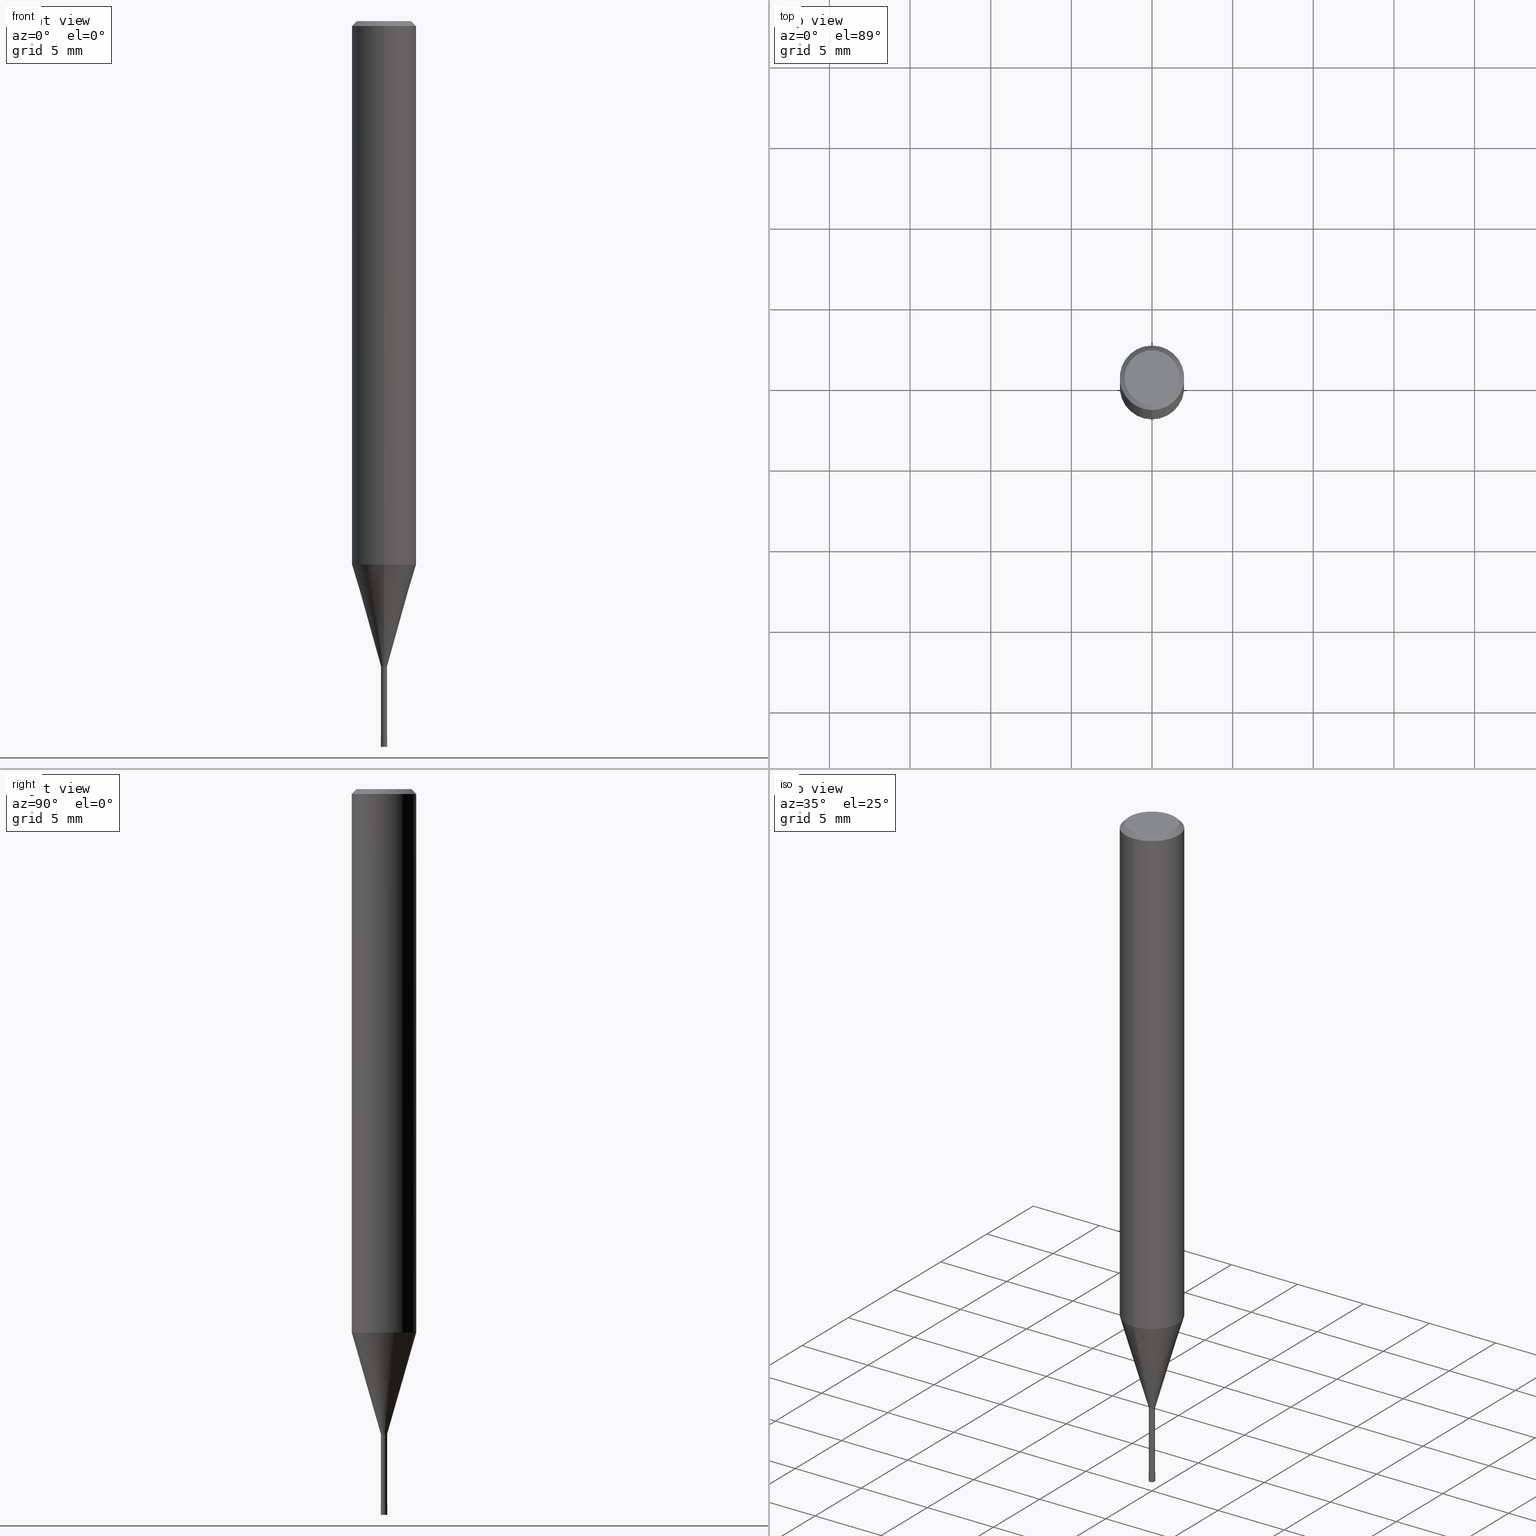
[diagram: canonical four-view strip — front | top / right | iso, engineering-drawing reading convention]
A machine part, canonical four-view strip (front | top / right | iso — engineering-drawing reading convention). The complete STEP part file that produces these views, byte-faithful:
ISO-10303-21;
HEADER;
FILE_DESCRIPTION(('no description'),'unknown implementation level');
FILE_NAME('HLS2004-050-Huellk.stp','  ',('CIMSOURCE GmbH'),('CADClick - KiM GmbH - www.kimweb.de'),'unknown preprocess','ACIS','unknown authorization');
FILE_SCHEMA(('automotive_design'));
ENDSEC;
DATA;
#1=MECHANICAL_DESIGN_GEOMETRIC_PRESENTATION_REPRESENTATION(' ',(#14,#15,#16,#17,#18,#19,#20,#21,#22,#23,#24,#25,#26,#27,#28,#29,#30,#31,#32,#33,#34,#35,#36,#37,#38,#39,#40,#41,#42,#43,#44,#45,#46,#47,#48,#49,#50,#51,#52,#53,#54,#55,#56,#57,#58,#59,#60,#61,#62,#63,#64,#65,#66,#67,#68,#69,#70,#71,#72),#10);
#2=PRODUCT_DEFINITION_CONTEXT('',#73,'design');
#3=APPLICATION_PROTOCOL_DEFINITION('INTERNATIONAL STANDARD','automotive_design',1994,#73);
#4=PRODUCT_CATEGORY_RELATIONSHIP('NONE','NONE',#74,#75);
#5=SHAPE_DEFINITION_REPRESENTATION(#76,#77);
#6=PRODUCT_DEFINITION_CONTEXT('',#78,'design');
#7=APPLICATION_PROTOCOL_DEFINITION('INTERNATIONAL STANDARD','automotive_design',1994,#78);
#8=PRODUCT_CATEGORY_RELATIONSHIP('NONE','NONE',#79,#80);
#9=SHAPE_DEFINITION_REPRESENTATION(#81,#82);
#10= (GEOMETRIC_REPRESENTATION_CONTEXT(3)GLOBAL_UNCERTAINTY_ASSIGNED_CONTEXT((#85))GLOBAL_UNIT_ASSIGNED_CONTEXT((#87,#88,#89))REPRESENTATION_CONTEXT('NONE','WORKSPACE'));
#14=STYLED_ITEM('',(#91),#92);
#15=STYLED_ITEM('',(#93),#94);
#16=STYLED_ITEM('',(#95),#96);
#17=STYLED_ITEM('',(#97),#98);
#18=STYLED_ITEM('',(#99),#100);
#19=STYLED_ITEM('',(#101),#102);
#20=STYLED_ITEM('',(#103),#104);
#21=STYLED_ITEM('',(#105),#106);
#22=STYLED_ITEM('',(#107),#108);
#23=STYLED_ITEM('',(#109),#110);
#24=STYLED_ITEM('',(#111),#112);
#25=STYLED_ITEM('',(#113),#114);
#26=STYLED_ITEM('',(#115),#116);
#27=STYLED_ITEM('',(#117),#118);
#28=STYLED_ITEM('',(#119),#120);
#29=STYLED_ITEM('',(#121),#122);
#30=STYLED_ITEM('',(#123),#124);
#31=STYLED_ITEM('',(#125),#126);
#32=STYLED_ITEM('',(#127),#128);
#33=STYLED_ITEM('',(#129),#130);
#34=STYLED_ITEM('',(#131),#132);
#35=STYLED_ITEM('',(#133),#134);
#36=STYLED_ITEM('',(#135),#136);
#37=STYLED_ITEM('',(#137),#138);
#38=STYLED_ITEM('',(#139),#140);
#39=STYLED_ITEM('',(#141),#142);
#40=STYLED_ITEM('',(#143),#144);
#41=STYLED_ITEM('',(#145),#146);
#42=STYLED_ITEM('',(#147),#148);
#43=STYLED_ITEM('',(#149),#150);
#44=STYLED_ITEM('',(#151),#152);
#45=STYLED_ITEM('',(#153),#154);
#46=STYLED_ITEM('',(#155),#156);
#47=STYLED_ITEM('',(#157),#158);
#48=STYLED_ITEM('',(#159),#160);
#49=STYLED_ITEM('',(#161),#162);
#50=STYLED_ITEM('',(#163),#164);
#51=STYLED_ITEM('',(#165),#166);
#52=STYLED_ITEM('',(#167),#168);
#53=STYLED_ITEM('',(#169),#170);
#54=STYLED_ITEM('',(#171),#172);
#55=STYLED_ITEM('',(#173),#174);
#56=STYLED_ITEM('',(#175),#176);
#57=STYLED_ITEM('',(#177),#178);
#58=STYLED_ITEM('',(#179),#180);
#59=STYLED_ITEM('',(#181),#182);
#60=STYLED_ITEM('',(#183),#184);
#61=STYLED_ITEM('',(#185),#186);
#62=STYLED_ITEM('',(#187),#188);
#63=STYLED_ITEM('',(#189),#190);
#64=STYLED_ITEM('',(#191),#192);
#65=STYLED_ITEM('',(#193),#194);
#66=STYLED_ITEM('',(#195),#196);
#67=STYLED_ITEM('',(#197),#198);
#68=STYLED_ITEM('',(#199),#200);
#69=STYLED_ITEM('',(#201),#202);
#70=STYLED_ITEM('',(#203),#204);
#71=STYLED_ITEM('',(#205),#206);
#72=STYLED_ITEM('',(#207),#208);
#73=APPLICATION_CONTEXT(' ');
#74=PRODUCT_CATEGORY('part','NONE');
#75=PRODUCT_RELATED_PRODUCT_CATEGORY('detail',' ',(#209));
#76=PRODUCT_DEFINITION_SHAPE('NONE','NONE',#210);
#77=ADVANCED_BREP_SHAPE_REPRESENTATION('1',(#154,#211),#10);
#78=APPLICATION_CONTEXT(' ');
#79=PRODUCT_CATEGORY('part','NONE');
#80=PRODUCT_RELATED_PRODUCT_CATEGORY('detail',' ',(#212));
#81=PRODUCT_DEFINITION_SHAPE('NONE','NONE',#213);
#82=ADVANCED_BREP_SHAPE_REPRESENTATION('2',(#134,#214),#10);
#85=UNCERTAINTY_MEASURE_WITH_UNIT(LENGTH_MEASURE(1.0E-006),#87,'','');
#87= (CONVERSION_BASED_UNIT('MILLIMETRE',#217)LENGTH_UNIT()NAMED_UNIT(#220));
#88= (NAMED_UNIT(#222)PLANE_ANGLE_UNIT()SI_UNIT($,.RADIAN.));
#89= (NAMED_UNIT(#222)SOLID_ANGLE_UNIT()SI_UNIT($,.STERADIAN.));
#91=PRESENTATION_STYLE_ASSIGNMENT((#228));
#92=EDGE_CURVE('',#172,#206,#229,.T.);
#93=PRESENTATION_STYLE_ASSIGNMENT((#230));
#94=VERTEX_POINT('',#231);
#95=PRESENTATION_STYLE_ASSIGNMENT((#232));
#96=ADVANCED_FACE('',(#233),#234,.T.);
#97=PRESENTATION_STYLE_ASSIGNMENT((#235));
#98=EDGE_CURVE('',#150,#124,#236,.T.);
#99=PRESENTATION_STYLE_ASSIGNMENT((#237));
#100=EDGE_CURVE('',#132,#106,#238,.T.);
#101=PRESENTATION_STYLE_ASSIGNMENT((#239));
#102=EDGE_CURVE('',#186,#122,#240,.T.);
#103=PRESENTATION_STYLE_ASSIGNMENT((#241));
#104=EDGE_CURVE('',#150,#94,#242,.T.);
#105=PRESENTATION_STYLE_ASSIGNMENT((#243));
#106=VERTEX_POINT('',#244);
#107=PRESENTATION_STYLE_ASSIGNMENT((#245));
#108=EDGE_CURVE('',#144,#166,#246,.T.);
#109=PRESENTATION_STYLE_ASSIGNMENT((#247));
#110=EDGE_CURVE('',#124,#160,#248,.T.);
#111=PRESENTATION_STYLE_ASSIGNMENT((#249));
#112=ADVANCED_FACE('',(#250),#251,.T.);
#113=PRESENTATION_STYLE_ASSIGNMENT((#252));
#114=ADVANCED_FACE('',(#253),#254,.T.);
#115=PRESENTATION_STYLE_ASSIGNMENT((#255));
#116=VERTEX_POINT('',#256);
#117=PRESENTATION_STYLE_ASSIGNMENT((#257));
#118=EDGE_CURVE('',#122,#116,#258,.T.);
#119=PRESENTATION_STYLE_ASSIGNMENT((#259));
#120=EDGE_CURVE('',#124,#150,#260,.T.);
#121=PRESENTATION_STYLE_ASSIGNMENT((#261));
#122=VERTEX_POINT('',#262);
#123=PRESENTATION_STYLE_ASSIGNMENT((#263));
#124=VERTEX_POINT('',#264);
#125=PRESENTATION_STYLE_ASSIGNMENT((#265));
#126=EDGE_CURVE('',#116,#196,#266,.T.);
#127=PRESENTATION_STYLE_ASSIGNMENT((#267));
#128=ADVANCED_FACE('',(#268),#269,.T.);
#129=PRESENTATION_STYLE_ASSIGNMENT((#270));
#130=EDGE_CURVE('',#192,#124,#271,.T.);
#131=PRESENTATION_STYLE_ASSIGNMENT((#272));
#132=VERTEX_POINT('',#273);
#133=PRESENTATION_STYLE_ASSIGNMENT((#274));
#134=MANIFOLD_SOLID_BREP('2',#275);
#135=PRESENTATION_STYLE_ASSIGNMENT((#276));
#136=EDGE_CURVE('',#190,#150,#277,.T.);
#137=PRESENTATION_STYLE_ASSIGNMENT((#278));
#138=EDGE_CURVE('',#192,#94,#279,.T.);
#139=PRESENTATION_STYLE_ASSIGNMENT((#280));
#140=EDGE_CURVE('',#206,#172,#281,.T.);
#141=PRESENTATION_STYLE_ASSIGNMENT((#282));
#142=EDGE_CURVE('',#190,#160,#283,.T.);
#143=PRESENTATION_STYLE_ASSIGNMENT((#284));
#144=VERTEX_POINT('',#285);
#145=PRESENTATION_STYLE_ASSIGNMENT((#286));
#146=ADVANCED_FACE('',(#287),#288,.T.);
#147=PRESENTATION_STYLE_ASSIGNMENT((#289));
#148=EDGE_CURVE('',#106,#186,#290,.T.);
#149=PRESENTATION_STYLE_ASSIGNMENT((#291));
#150=VERTEX_POINT('',#292);
#151=PRESENTATION_STYLE_ASSIGNMENT((#293));
#152=EDGE_CURVE('',#106,#116,#294,.T.);
#153=PRESENTATION_STYLE_ASSIGNMENT((#295));
#154=MANIFOLD_SOLID_BREP('1',#296);
#155=PRESENTATION_STYLE_ASSIGNMENT((#297));
#156=EDGE_CURVE('',#166,#144,#298,.T.);
#157=PRESENTATION_STYLE_ASSIGNMENT((#299));
#158=EDGE_CURVE('',#116,#106,#300,.T.);
#159=PRESENTATION_STYLE_ASSIGNMENT((#301));
#160=VERTEX_POINT('',#302);
#161=PRESENTATION_STYLE_ASSIGNMENT((#303));
#162=EDGE_CURVE('',#144,#172,#304,.T.);
#163=PRESENTATION_STYLE_ASSIGNMENT((#305));
#164=ADVANCED_FACE('',(#306),#307,.T.);
#165=PRESENTATION_STYLE_ASSIGNMENT((#308));
#166=VERTEX_POINT('',#309);
#167=PRESENTATION_STYLE_ASSIGNMENT((#310));
#168=ADVANCED_FACE('',(#311),#312,.T.);
#169=PRESENTATION_STYLE_ASSIGNMENT((#313));
#170=ADVANCED_FACE('',(#314),#315,.T.);
#171=PRESENTATION_STYLE_ASSIGNMENT((#316));
#172=VERTEX_POINT('',#317);
#173=PRESENTATION_STYLE_ASSIGNMENT((#318));
#174=EDGE_CURVE('',#206,#166,#319,.T.);
#175=PRESENTATION_STYLE_ASSIGNMENT((#320));
#176=ADVANCED_FACE('',(#321),#322,.T.);
#177=PRESENTATION_STYLE_ASSIGNMENT((#323));
#178=EDGE_CURVE('',#132,#196,#324,.T.);
#179=PRESENTATION_STYLE_ASSIGNMENT((#325));
#180=ADVANCED_FACE('',(#326,#327),#328,.T.);
#181=PRESENTATION_STYLE_ASSIGNMENT((#329));
#182=ADVANCED_FACE('',(#330),#331,.T.);
#183=PRESENTATION_STYLE_ASSIGNMENT((#332));
#184=ADVANCED_FACE('',(#333),#334,.T.);
#185=PRESENTATION_STYLE_ASSIGNMENT((#335));
#186=VERTEX_POINT('',#336);
#187=PRESENTATION_STYLE_ASSIGNMENT((#337));
#188=ADVANCED_FACE('',(#338),#339,.T.);
#189=PRESENTATION_STYLE_ASSIGNMENT((#340));
#190=VERTEX_POINT('',#341);
#191=PRESENTATION_STYLE_ASSIGNMENT((#342));
#192=VERTEX_POINT('',#343);
#193=PRESENTATION_STYLE_ASSIGNMENT((#344));
#194=EDGE_CURVE('',#122,#186,#345,.T.);
#195=PRESENTATION_STYLE_ASSIGNMENT((#346));
#196=VERTEX_POINT('',#347);
#197=PRESENTATION_STYLE_ASSIGNMENT((#348));
#198=EDGE_CURVE('',#196,#132,#349,.T.);
#199=PRESENTATION_STYLE_ASSIGNMENT((#350));
#200=EDGE_CURVE('',#94,#192,#351,.T.);
#201=PRESENTATION_STYLE_ASSIGNMENT((#352));
#202=EDGE_CURVE('',#160,#190,#353,.T.);
#203=PRESENTATION_STYLE_ASSIGNMENT((#354));
#204=ADVANCED_FACE('',(#355),#356,.T.);
#205=PRESENTATION_STYLE_ASSIGNMENT((#357));
#206=VERTEX_POINT('',#358);
#207=PRESENTATION_STYLE_ASSIGNMENT((#359));
#208=ADVANCED_FACE('',(#360),#361,.T.);
#209=PRODUCT('1','1','PART-1-DESC',(#362));
#210=PRODUCT_DEFINITION('NONE','NONE',#363,#2);
#211=AXIS2_PLACEMENT_3D('',#364,#365,#366);
#212=PRODUCT('2','2','PART-2-DESC',(#367));
#213=PRODUCT_DEFINITION('NONE','NONE',#368,#6);
#214=AXIS2_PLACEMENT_3D('',#369,#370,#371);
#217=LENGTH_MEASURE_WITH_UNIT(LENGTH_MEASURE(1.0),#372);
#220=DIMENSIONAL_EXPONENTS(1.0,0.0,0.0,0.0,0.0,0.0,0.0);
#222=DIMENSIONAL_EXPONENTS(0.0,0.0,0.0,0.0,0.0,0.0,0.0);
#228=CURVE_STYLE('',#373,POSITIVE_LENGTH_MEASURE(1.0E-006),#374);
#229=CIRCLE('',#375,0.1999);
#230=POINT_STYLE(' ',#376,POSITIVE_LENGTH_MEASURE(1.0E-006),#377);
#231=CARTESIAN_POINT('',(0.0,0.18995,-44.4));
#232=SURFACE_STYLE_USAGE(.BOTH.,#378);
#233=FACE_OUTER_BOUND('',#379,.T.);
#234=CYLINDRICAL_SURFACE('',#380,2.0);
#235=CURVE_STYLE('',#381,POSITIVE_LENGTH_MEASURE(1.0E-006),#382);
#236=CIRCLE('',#383,0.18995);
#237=CURVE_STYLE('',#384,POSITIVE_LENGTH_MEASURE(1.0E-006),#385);
#238=LINE('',#386,#387);
#239=CURVE_STYLE('',#388,POSITIVE_LENGTH_MEASURE(1.0E-006),#389);
#240=CIRCLE('',#390,1.7);
#241=CURVE_STYLE('',#391,POSITIVE_LENGTH_MEASURE(1.0E-006),#392);
#242=LINE('',#393,#394);
#243=POINT_STYLE(' ',#395,POSITIVE_LENGTH_MEASURE(1.0E-006),#396);
#244=CARTESIAN_POINT('',(2.44921270764475E-016,-2.0,-0.299999999999997));
#245=CURVE_STYLE('',#397,POSITIVE_LENGTH_MEASURE(1.0E-006),#398);
#246=CIRCLE('',#399,0.2);
#247=CURVE_STYLE('',#400,POSITIVE_LENGTH_MEASURE(1.0E-006),#401);
#248=LINE('',#402,#403);
#249=SURFACE_STYLE_USAGE(.BOTH.,#404);
#250=FACE_OUTER_BOUND('',#405,.T.);
#251=PLANE('',#406);
#252=SURFACE_STYLE_USAGE(.BOTH.,#407);
#253=FACE_OUTER_BOUND('',#408,.T.);
#254=CONICAL_SURFACE('',#409,0.19995,0.000166666665123485);
#255=POINT_STYLE(' ',#410,POSITIVE_LENGTH_MEASURE(1.0E-006),#411);
#256=CARTESIAN_POINT('',(0.0,2.0,-0.299999999999997));
#257=CURVE_STYLE('',#412,POSITIVE_LENGTH_MEASURE(1.0E-006),#413);
#258=LINE('',#414,#415);
#259=CURVE_STYLE('',#416,POSITIVE_LENGTH_MEASURE(1.0E-006),#417);
#260=CIRCLE('',#418,0.18995);
#261=POINT_STYLE(' ',#419,POSITIVE_LENGTH_MEASURE(1.0E-006),#420);
#262=CARTESIAN_POINT('',(0.0,1.7,0.0));
#263=POINT_STYLE(' ',#421,POSITIVE_LENGTH_MEASURE(1.0E-006),#422);
#264=CARTESIAN_POINT('',(2.3261397690856E-017,-0.18995,-40.0));
#265=CURVE_STYLE('',#423,POSITIVE_LENGTH_MEASURE(1.0E-006),#424);
#266=LINE('',#425,#426);
#267=SURFACE_STYLE_USAGE(.BOTH.,#427);
#268=FACE_OUTER_BOUND('',#428,.T.);
#269=CONICAL_SURFACE('',#429,0.19995,0.000166666665123485);
#270=CURVE_STYLE('',#430,POSITIVE_LENGTH_MEASURE(1.0E-006),#431);
#271=LINE('',#432,#433);
#272=POINT_STYLE(' ',#434,POSITIVE_LENGTH_MEASURE(1.0E-006),#435);
#273=CARTESIAN_POINT('',(2.44921270764475E-016,-2.0,-33.688));
#274=SURFACE_STYLE_USAGE(.BOTH.,#436);
#275=CLOSED_SHELL('',(#114,#170,#128,#112));
#276=CURVE_STYLE('',#437,POSITIVE_LENGTH_MEASURE(1.0E-006),#438);
#277=LINE('',#439,#440);
#278=CURVE_STYLE('',#441,POSITIVE_LENGTH_MEASURE(1.0E-006),#442);
#279=CIRCLE('',#443,0.18995);
#280=CURVE_STYLE('',#444,POSITIVE_LENGTH_MEASURE(1.0E-006),#445);
#281=CIRCLE('',#446,0.1999);
#282=CURVE_STYLE('',#447,POSITIVE_LENGTH_MEASURE(1.0E-006),#448);
#283=CIRCLE('',#449,1.99995);
#284=POINT_STYLE(' ',#450,POSITIVE_LENGTH_MEASURE(1.0E-006),#451);
#285=CARTESIAN_POINT('',(2.44921270764476E-017,-0.2,-45.0));
#286=SURFACE_STYLE_USAGE(.BOTH.,#452);
#287=FACE_OUTER_BOUND('',#453,.T.);
#288=CYLINDRICAL_SURFACE('',#454,0.18995);
#289=CURVE_STYLE('',#455,POSITIVE_LENGTH_MEASURE(1.0E-006),#456);
#290=LINE('',#457,#458);
#291=POINT_STYLE(' ',#459,POSITIVE_LENGTH_MEASURE(1.0E-006),#460);
#292=CARTESIAN_POINT('',(0.0,0.18995,-40.0));
#293=CURVE_STYLE('',#461,POSITIVE_LENGTH_MEASURE(1.0E-006),#462);
#294=CIRCLE('',#463,2.0);
#295=SURFACE_STYLE_USAGE(.BOTH.,#464);
#296=CLOSED_SHELL('',(#146,#176,#96,#164,#180,#204,#188,#184,#168,#182,#208));
#297=CURVE_STYLE('',#465,POSITIVE_LENGTH_MEASURE(1.0E-006),#466);
#298=CIRCLE('',#467,0.2);
#299=CURVE_STYLE('',#468,POSITIVE_LENGTH_MEASURE(1.0E-006),#469);
#300=CIRCLE('',#470,2.0);
#301=POINT_STYLE(' ',#471,POSITIVE_LENGTH_MEASURE(1.0E-006),#472);
#302=CARTESIAN_POINT('',(2.44915147732706E-016,-1.99995,-33.688));
#303=CURVE_STYLE('',#473,POSITIVE_LENGTH_MEASURE(1.0E-006),#474);
#304=LINE('',#475,#476);
#305=SURFACE_STYLE_USAGE(.BOTH.,#477);
#306=FACE_OUTER_BOUND('',#478,.T.);
#307=CONICAL_SURFACE('',#479,1.85,0.785398163397453);
#308=POINT_STYLE(' ',#480,POSITIVE_LENGTH_MEASURE(1.0E-006),#481);
#309=CARTESIAN_POINT('',(0.0,0.2,-45.0));
#310=SURFACE_STYLE_USAGE(.BOTH.,#482);
#311=FACE_OUTER_BOUND('',#483,.T.);
#312=CONICAL_SURFACE('',#484,1.09495,0.279261921280279);
#313=SURFACE_STYLE_USAGE(.BOTH.,#485);
#314=FACE_OUTER_BOUND('',#486,.T.);
#315=PLANE('',#487);
#316=POINT_STYLE(' ',#488,POSITIVE_LENGTH_MEASURE(1.0E-006),#489);
#317=CARTESIAN_POINT('',(2.44798810129093E-017,-0.1999,-44.4));
#318=CURVE_STYLE('',#490,POSITIVE_LENGTH_MEASURE(1.0E-006),#491);
#319=LINE('',#492,#493);
#320=SURFACE_STYLE_USAGE(.BOTH.,#494);
#321=FACE_OUTER_BOUND('',#495,.T.);
#322=CONICAL_SURFACE('',#496,1.09495,0.279261921280279);
#323=CURVE_STYLE('',#497,POSITIVE_LENGTH_MEASURE(1.0E-006),#498);
#324=CIRCLE('',#499,2.0);
#325=SURFACE_STYLE_USAGE(.BOTH.,#500);
#326=FACE_OUTER_BOUND('',#501,.T.);
#327=FACE_BOUND('',#502,.T.);
#328=PLANE('',#503);
#329=SURFACE_STYLE_USAGE(.BOTH.,#504);
#330=FACE_OUTER_BOUND('',#505,.T.);
#331=CYLINDRICAL_SURFACE('',#506,0.18995);
#332=SURFACE_STYLE_USAGE(.BOTH.,#507);
#333=FACE_OUTER_BOUND('',#508,.T.);
#334=CYLINDRICAL_SURFACE('',#509,2.0);
#335=POINT_STYLE(' ',#510,POSITIVE_LENGTH_MEASURE(1.0E-006),#511);
#336=CARTESIAN_POINT('',(2.08183080149804E-016,-1.7,0.0));
#337=SURFACE_STYLE_USAGE(.BOTH.,#512);
#338=FACE_OUTER_BOUND('',#513,.T.);
#339=CONICAL_SURFACE('',#514,1.85,0.785398163397453);
#340=POINT_STYLE(' ',#515,POSITIVE_LENGTH_MEASURE(1.0E-006),#516);
#341=CARTESIAN_POINT('',(0.0,1.99995,-33.688));
#342=POINT_STYLE(' ',#517,POSITIVE_LENGTH_MEASURE(1.0E-006),#518);
#343=CARTESIAN_POINT('',(2.32613976908561E-017,-0.18995,-44.4));
#344=CURVE_STYLE('',#519,POSITIVE_LENGTH_MEASURE(1.0E-006),#520);
#345=CIRCLE('',#521,1.7);
#346=POINT_STYLE(' ',#522,POSITIVE_LENGTH_MEASURE(1.0E-006),#523);
#347=CARTESIAN_POINT('',(0.0,2.0,-33.688));
#348=CURVE_STYLE('',#524,POSITIVE_LENGTH_MEASURE(1.0E-006),#525);
#349=CIRCLE('',#526,2.0);
#350=CURVE_STYLE('',#527,POSITIVE_LENGTH_MEASURE(1.0E-006),#528);
#351=CIRCLE('',#529,0.18995);
#352=CURVE_STYLE('',#530,POSITIVE_LENGTH_MEASURE(1.0E-006),#531);
#353=CIRCLE('',#532,1.99995);
#354=SURFACE_STYLE_USAGE(.BOTH.,#533);
#355=FACE_OUTER_BOUND('',#534,.T.);
#356=PLANE('',#535);
#357=POINT_STYLE(' ',#536,POSITIVE_LENGTH_MEASURE(1.0E-006),#537);
#358=CARTESIAN_POINT('',(0.0,0.1999,-44.4));
#359=SURFACE_STYLE_USAGE(.BOTH.,#538);
#360=FACE_OUTER_BOUND('',#539,.T.);
#361=PLANE('',#540);
#362=PRODUCT_CONTEXT('',#73,'mechanical');
#363=PRODUCT_DEFINITION_FORMATION_WITH_SPECIFIED_SOURCE(' ','NONE',#209,.NOT_KNOWN.);
#364=CARTESIAN_POINT('',(0.0,0.0,0.0));
#365=DIRECTION('',(0.0,0.0,1.0));
#366=DIRECTION('',(1.0,0.0,0.0));
#367=PRODUCT_CONTEXT('',#78,'mechanical');
#368=PRODUCT_DEFINITION_FORMATION_WITH_SPECIFIED_SOURCE(' ','NONE',#212,.NOT_KNOWN.);
#369=CARTESIAN_POINT('',(0.0,0.0,0.0));
#370=DIRECTION('',(0.0,0.0,1.0));
#371=DIRECTION('',(1.0,0.0,0.0));
#372= (NAMED_UNIT(#220)LENGTH_UNIT()SI_UNIT(.MILLI.,.METRE.));
#373=DRAUGHTING_PRE_DEFINED_CURVE_FONT('continuous');
#374=COLOUR_RGB('',0.800000011920929,0.800000011920929,0.800000011920929);
#375=AXIS2_PLACEMENT_3D('',#542,#543,#544);
#376=PRE_DEFINED_MARKER('');
#377=COLOUR_RGB('',0.498039215803146,0.498039215803146,0.498039215803146);
#378=SURFACE_SIDE_STYLE('',(#545));
#379=EDGE_LOOP('',(#546,#547,#548,#549));
#380=AXIS2_PLACEMENT_3D('',#550,#551,#552);
#381=DRAUGHTING_PRE_DEFINED_CURVE_FONT('continuous');
#382=COLOUR_RGB('',0.498039215803146,0.498039215803146,0.498039215803146);
#383=AXIS2_PLACEMENT_3D('',#553,#554,#555);
#384=DRAUGHTING_PRE_DEFINED_CURVE_FONT('continuous');
#385=COLOUR_RGB('',0.498039215803146,0.498039215803146,0.498039215803146);
#386=CARTESIAN_POINT('',(2.44921270764475E-016,-2.0,-16.994));
#387=VECTOR('',#556,1.0);
#388=DRAUGHTING_PRE_DEFINED_CURVE_FONT('continuous');
#389=COLOUR_RGB('',0.498039215803146,0.498039215803146,0.498039215803146);
#390=AXIS2_PLACEMENT_3D('',#557,#558,#559);
#391=DRAUGHTING_PRE_DEFINED_CURVE_FONT('continuous');
#392=COLOUR_RGB('',0.498039215803146,0.498039215803146,0.498039215803146);
#393=CARTESIAN_POINT('',(-2.32613976908561E-017,0.18995,-42.2));
#394=VECTOR('',#560,1.0);
#395=PRE_DEFINED_MARKER('');
#396=COLOUR_RGB('',0.498039215803146,0.498039215803146,0.498039215803146);
#397=DRAUGHTING_PRE_DEFINED_CURVE_FONT('continuous');
#398=COLOUR_RGB('',0.800000011920929,0.800000011920929,0.800000011920929);
#399=AXIS2_PLACEMENT_3D('',#561,#562,#563);
#400=DRAUGHTING_PRE_DEFINED_CURVE_FONT('continuous');
#401=COLOUR_RGB('',0.498039215803146,0.498039215803146,0.498039215803146);
#402=CARTESIAN_POINT('',(1.34088272711781E-016,-1.09495,-36.844));
#403=VECTOR('',#564,1.0);
#404=SURFACE_SIDE_STYLE('',(#565));
#405=EDGE_LOOP('',(#566,#567));
#406=AXIS2_PLACEMENT_3D('',#568,#569,#570);
#407=SURFACE_SIDE_STYLE('',(#571));
#408=EDGE_LOOP('',(#572,#573,#574,#575));
#409=AXIS2_PLACEMENT_3D('',#576,#577,#578);
#410=PRE_DEFINED_MARKER('');
#411=COLOUR_RGB('',0.498039215803146,0.498039215803146,0.498039215803146);
#412=DRAUGHTING_PRE_DEFINED_CURVE_FONT('continuous');
#413=COLOUR_RGB('',0.498039215803146,0.498039215803146,0.498039215803146);
#414=CARTESIAN_POINT('',(-2.2655217545714E-016,1.85,-0.149999999999999));
#415=VECTOR('',#579,1.0);
#416=DRAUGHTING_PRE_DEFINED_CURVE_FONT('continuous');
#417=COLOUR_RGB('',0.498039215803146,0.498039215803146,0.498039215803146);
#418=AXIS2_PLACEMENT_3D('',#580,#581,#582);
#419=PRE_DEFINED_MARKER('');
#420=COLOUR_RGB('',0.498039215803146,0.498039215803146,0.498039215803146);
#421=PRE_DEFINED_MARKER('');
#422=COLOUR_RGB('',0.498039215803146,0.498039215803146,0.498039215803146);
#423=DRAUGHTING_PRE_DEFINED_CURVE_FONT('continuous');
#424=COLOUR_RGB('',0.498039215803146,0.498039215803146,0.498039215803146);
#425=CARTESIAN_POINT('',(-2.44921270764475E-016,2.0,-16.994));
#426=VECTOR('',#583,1.0);
#427=SURFACE_SIDE_STYLE('',(#584));
#428=EDGE_LOOP('',(#585,#586,#587,#588));
#429=AXIS2_PLACEMENT_3D('',#589,#590,#591);
#430=DRAUGHTING_PRE_DEFINED_CURVE_FONT('continuous');
#431=COLOUR_RGB('',0.498039215803146,0.498039215803146,0.498039215803146);
#432=CARTESIAN_POINT('',(2.32613976908561E-017,-0.18995,-42.2));
#433=VECTOR('',#592,1.0);
#434=PRE_DEFINED_MARKER('');
#435=COLOUR_RGB('',0.498039215803146,0.498039215803146,0.498039215803146);
#436=SURFACE_SIDE_STYLE('',(#593));
#437=DRAUGHTING_PRE_DEFINED_CURVE_FONT('continuous');
#438=COLOUR_RGB('',0.498039215803146,0.498039215803146,0.498039215803146);
#439=CARTESIAN_POINT('',(-1.34088272711781E-016,1.09495,-36.844));
#440=VECTOR('',#594,1.0);
#441=DRAUGHTING_PRE_DEFINED_CURVE_FONT('continuous');
#442=COLOUR_RGB('',0.498039215803146,0.498039215803146,0.498039215803146);
#443=AXIS2_PLACEMENT_3D('',#595,#596,#597);
#444=DRAUGHTING_PRE_DEFINED_CURVE_FONT('continuous');
#445=COLOUR_RGB('',0.800000011920929,0.800000011920929,0.800000011920929);
#446=AXIS2_PLACEMENT_3D('',#598,#599,#600);
#447=DRAUGHTING_PRE_DEFINED_CURVE_FONT('continuous');
#448=COLOUR_RGB('',0.498039215803146,0.498039215803146,0.498039215803146);
#449=AXIS2_PLACEMENT_3D('',#601,#602,#603);
#450=PRE_DEFINED_MARKER('');
#451=COLOUR_RGB('',0.800000011920929,0.800000011920929,0.800000011920929);
#452=SURFACE_SIDE_STYLE('',(#604));
#453=EDGE_LOOP('',(#605,#606,#607,#608));
#454=AXIS2_PLACEMENT_3D('',#609,#610,#611);
#455=DRAUGHTING_PRE_DEFINED_CURVE_FONT('continuous');
#456=COLOUR_RGB('',0.498039215803146,0.498039215803146,0.498039215803146);
#457=CARTESIAN_POINT('',(2.2655217545714E-016,-1.85,-0.149999999999999));
#458=VECTOR('',#612,1.0);
#459=PRE_DEFINED_MARKER('');
#460=COLOUR_RGB('',0.498039215803146,0.498039215803146,0.498039215803146);
#461=DRAUGHTING_PRE_DEFINED_CURVE_FONT('continuous');
#462=COLOUR_RGB('',0.498039215803146,0.498039215803146,0.498039215803146);
#463=AXIS2_PLACEMENT_3D('',#613,#614,#615);
#464=SURFACE_SIDE_STYLE('',(#616));
#465=DRAUGHTING_PRE_DEFINED_CURVE_FONT('continuous');
#466=COLOUR_RGB('',0.800000011920929,0.800000011920929,0.800000011920929);
#467=AXIS2_PLACEMENT_3D('',#617,#618,#619);
#468=DRAUGHTING_PRE_DEFINED_CURVE_FONT('continuous');
#469=COLOUR_RGB('',0.498039215803146,0.498039215803146,0.498039215803146);
#470=AXIS2_PLACEMENT_3D('',#620,#621,#622);
#471=PRE_DEFINED_MARKER('');
#472=COLOUR_RGB('',0.498039215803146,0.498039215803146,0.498039215803146);
#473=DRAUGHTING_PRE_DEFINED_CURVE_FONT('continuous');
#474=COLOUR_RGB('',0.800000011920929,0.800000011920929,0.800000011920929);
#475=CARTESIAN_POINT('',(2.44860040446784E-017,-0.19995,-44.7));
#476=VECTOR('',#623,1.0);
#477=SURFACE_SIDE_STYLE('',(#624));
#478=EDGE_LOOP('',(#625,#626,#627,#628));
#479=AXIS2_PLACEMENT_3D('',#629,#630,#631);
#480=PRE_DEFINED_MARKER('');
#481=COLOUR_RGB('',0.800000011920929,0.800000011920929,0.800000011920929);
#482=SURFACE_SIDE_STYLE('',(#632));
#483=EDGE_LOOP('',(#633,#634,#635,#636));
#484=AXIS2_PLACEMENT_3D('',#637,#638,#639);
#485=SURFACE_SIDE_STYLE('',(#640));
#486=EDGE_LOOP('',(#641,#642));
#487=AXIS2_PLACEMENT_3D('',#643,#644,#645);
#488=PRE_DEFINED_MARKER('');
#489=COLOUR_RGB('',0.800000011920929,0.800000011920929,0.800000011920929);
#490=DRAUGHTING_PRE_DEFINED_CURVE_FONT('continuous');
#491=COLOUR_RGB('',0.800000011920929,0.800000011920929,0.800000011920929);
#492=CARTESIAN_POINT('',(-2.44860040446784E-017,0.19995,-44.7));
#493=VECTOR('',#646,1.0);
#494=SURFACE_SIDE_STYLE('',(#647));
#495=EDGE_LOOP('',(#648,#649,#650,#651));
#496=AXIS2_PLACEMENT_3D('',#652,#653,#654);
#497=DRAUGHTING_PRE_DEFINED_CURVE_FONT('continuous');
#498=COLOUR_RGB('',0.498039215803146,0.498039215803146,0.498039215803146);
#499=AXIS2_PLACEMENT_3D('',#655,#656,#657);
#500=SURFACE_SIDE_STYLE('',(#658));
#501=EDGE_LOOP('',(#659,#660));
#502=EDGE_LOOP('',(#661,#662));
#503=AXIS2_PLACEMENT_3D('',#663,#664,#665);
#504=SURFACE_SIDE_STYLE('',(#666));
#505=EDGE_LOOP('',(#667,#668,#669,#670));
#506=AXIS2_PLACEMENT_3D('',#671,#672,#673);
#507=SURFACE_SIDE_STYLE('',(#674));
#508=EDGE_LOOP('',(#675,#676,#677,#678));
#509=AXIS2_PLACEMENT_3D('',#679,#680,#681);
#510=PRE_DEFINED_MARKER('');
#511=COLOUR_RGB('',0.498039215803146,0.498039215803146,0.498039215803146);
#512=SURFACE_SIDE_STYLE('',(#682));
#513=EDGE_LOOP('',(#683,#684,#685,#686));
#514=AXIS2_PLACEMENT_3D('',#687,#688,#689);
#515=PRE_DEFINED_MARKER('');
#516=COLOUR_RGB('',0.498039215803146,0.498039215803146,0.498039215803146);
#517=PRE_DEFINED_MARKER('');
#518=COLOUR_RGB('',0.498039215803146,0.498039215803146,0.498039215803146);
#519=DRAUGHTING_PRE_DEFINED_CURVE_FONT('continuous');
#520=COLOUR_RGB('',0.498039215803146,0.498039215803146,0.498039215803146);
#521=AXIS2_PLACEMENT_3D('',#690,#691,#692);
#522=PRE_DEFINED_MARKER('');
#523=COLOUR_RGB('',0.498039215803146,0.498039215803146,0.498039215803146);
#524=DRAUGHTING_PRE_DEFINED_CURVE_FONT('continuous');
#525=COLOUR_RGB('',0.498039215803146,0.498039215803146,0.498039215803146);
#526=AXIS2_PLACEMENT_3D('',#693,#694,#695);
#527=DRAUGHTING_PRE_DEFINED_CURVE_FONT('continuous');
#528=COLOUR_RGB('',0.498039215803146,0.498039215803146,0.498039215803146);
#529=AXIS2_PLACEMENT_3D('',#696,#697,#698);
#530=DRAUGHTING_PRE_DEFINED_CURVE_FONT('continuous');
#531=COLOUR_RGB('',0.498039215803146,0.498039215803146,0.498039215803146);
#532=AXIS2_PLACEMENT_3D('',#699,#700,#701);
#533=SURFACE_SIDE_STYLE('',(#702));
#534=EDGE_LOOP('',(#703,#704));
#535=AXIS2_PLACEMENT_3D('',#705,#706,#707);
#536=PRE_DEFINED_MARKER('');
#537=COLOUR_RGB('',0.800000011920929,0.800000011920929,0.800000011920929);
#538=SURFACE_SIDE_STYLE('',(#708));
#539=EDGE_LOOP('',(#709,#710));
#540=AXIS2_PLACEMENT_3D('',#711,#712,#713);
#542=CARTESIAN_POINT('',(0.0,0.0,-44.4));
#543=DIRECTION('',(0.0,0.0,-1.0));
#544=DIRECTION('',(0.0,1.0,0.0));
#545=SURFACE_STYLE_FILL_AREA(#714);
#546=ORIENTED_EDGE('',*,*,#126,.F.);
#547=ORIENTED_EDGE('',*,*,#158,.T.);
#548=ORIENTED_EDGE('',*,*,#100,.F.);
#549=ORIENTED_EDGE('',*,*,#198,.F.);
#550=CARTESIAN_POINT('',(0.0,0.0,-16.994));
#551=DIRECTION('',(-0.0,-0.0,1.0));
#552=DIRECTION('',(0.0,1.0,0.0));
#553=CARTESIAN_POINT('',(0.0,0.0,-40.0));
#554=DIRECTION('',(0.0,0.0,-1.0));
#555=DIRECTION('',(0.0,1.0,0.0));
#556=DIRECTION('',(-0.0,-0.0,1.0));
#557=CARTESIAN_POINT('',(0.0,0.0,0.0));
#558=DIRECTION('',(0.0,0.0,-1.0));
#559=DIRECTION('',(0.0,1.0,0.0));
#560=DIRECTION('',(0.0,0.0,-1.0));
#561=CARTESIAN_POINT('',(0.0,0.0,-45.0));
#562=DIRECTION('',(0.0,0.0,-1.0));
#563=DIRECTION('',(0.0,1.0,0.0));
#564=DIRECTION('',(3.37558135426109E-017,-0.275646238787252,0.961259148743169));
#565=SURFACE_STYLE_FILL_AREA(#715);
#566=ORIENTED_EDGE('',*,*,#156,.T.);
#567=ORIENTED_EDGE('',*,*,#108,.T.);
#568=CARTESIAN_POINT('',(0.0,0.0975,-45.0));
#569=DIRECTION('',(0.0,0.0,-1.0));
#570=DIRECTION('',(0.0,1.0,0.0));
#571=SURFACE_STYLE_FILL_AREA(#716);
#572=ORIENTED_EDGE('',*,*,#174,.F.);
#573=ORIENTED_EDGE('',*,*,#140,.T.);
#574=ORIENTED_EDGE('',*,*,#162,.F.);
#575=ORIENTED_EDGE('',*,*,#156,.F.);
#576=CARTESIAN_POINT('',(0.0,0.0,-44.7));
#577=DIRECTION('',(0.0,-0.0,-1.0));
#578=DIRECTION('',(0.0,1.0,0.0));
#579=DIRECTION('',(-8.6592745707194E-017,0.707106781186551,-0.707106781186544));
#580=CARTESIAN_POINT('',(0.0,0.0,-40.0));
#581=DIRECTION('',(0.0,0.0,-1.0));
#582=DIRECTION('',(0.0,1.0,0.0));
#583=DIRECTION('',(0.0,0.0,-1.0));
#584=SURFACE_STYLE_FILL_AREA(#717);
#585=ORIENTED_EDGE('',*,*,#174,.T.);
#586=ORIENTED_EDGE('',*,*,#108,.F.);
#587=ORIENTED_EDGE('',*,*,#162,.T.);
#588=ORIENTED_EDGE('',*,*,#92,.T.);
#589=CARTESIAN_POINT('',(0.0,0.0,-44.7));
#590=DIRECTION('',(0.0,-0.0,-1.0));
#591=DIRECTION('',(0.0,1.0,0.0));
#592=DIRECTION('',(-0.0,-0.0,1.0));
#593=SURFACE_STYLE_FILL_AREA(#718);
#594=DIRECTION('',(3.37558135426109E-017,-0.275646238787252,-0.961259148743169));
#595=CARTESIAN_POINT('',(0.0,0.0,-44.4));
#596=DIRECTION('',(0.0,0.0,-1.0));
#597=DIRECTION('',(0.0,1.0,0.0));
#598=CARTESIAN_POINT('',(0.0,0.0,-44.4));
#599=DIRECTION('',(0.0,0.0,-1.0));
#600=DIRECTION('',(0.0,1.0,0.0));
#601=CARTESIAN_POINT('',(0.0,0.0,-33.688));
#602=DIRECTION('',(0.0,0.0,-1.0));
#603=DIRECTION('',(0.0,1.0,0.0));
#604=SURFACE_STYLE_FILL_AREA(#719);
#605=ORIENTED_EDGE('',*,*,#104,.F.);
#606=ORIENTED_EDGE('',*,*,#98,.T.);
#607=ORIENTED_EDGE('',*,*,#130,.F.);
#608=ORIENTED_EDGE('',*,*,#200,.F.);
#609=CARTESIAN_POINT('',(0.0,0.0,-42.2));
#610=DIRECTION('',(-0.0,-0.0,1.0));
#611=DIRECTION('',(0.0,1.0,0.0));
#612=DIRECTION('',(-8.6592745707194E-017,0.707106781186551,0.707106781186544));
#613=CARTESIAN_POINT('',(0.0,0.0,-0.299999999999997));
#614=DIRECTION('',(0.0,0.0,-1.0));
#615=DIRECTION('',(0.0,1.0,0.0));
#616=SURFACE_STYLE_FILL_AREA(#720);
#617=CARTESIAN_POINT('',(0.0,0.0,-45.0));
#618=DIRECTION('',(0.0,0.0,-1.0));
#619=DIRECTION('',(0.0,1.0,0.0));
#620=CARTESIAN_POINT('',(0.0,0.0,-0.299999999999997));
#621=DIRECTION('',(0.0,0.0,-1.0));
#622=DIRECTION('',(0.0,1.0,0.0));
#623=DIRECTION('',(-2.04101056135694E-020,0.00016666666435188,0.999999986111112));
#624=SURFACE_STYLE_FILL_AREA(#721);
#625=ORIENTED_EDGE('',*,*,#118,.F.);
#626=ORIENTED_EDGE('',*,*,#194,.T.);
#627=ORIENTED_EDGE('',*,*,#148,.F.);
#628=ORIENTED_EDGE('',*,*,#158,.F.);
#629=CARTESIAN_POINT('',(0.0,0.0,-0.149999999999999));
#630=DIRECTION('',(0.0,-0.0,-1.0));
#631=DIRECTION('',(0.0,1.0,0.0));
#632=SURFACE_STYLE_FILL_AREA(#722);
#633=ORIENTED_EDGE('',*,*,#136,.T.);
#634=ORIENTED_EDGE('',*,*,#120,.F.);
#635=ORIENTED_EDGE('',*,*,#110,.T.);
#636=ORIENTED_EDGE('',*,*,#202,.T.);
#637=CARTESIAN_POINT('',(0.0,0.0,-36.844));
#638=DIRECTION('',(-0.0,-0.0,1.0));
#639=DIRECTION('',(0.0,1.0,0.0));
#640=SURFACE_STYLE_FILL_AREA(#723);
#641=ORIENTED_EDGE('',*,*,#140,.F.);
#642=ORIENTED_EDGE('',*,*,#92,.F.);
#643=CARTESIAN_POINT('',(0.0,0.09995,-44.4));
#644=DIRECTION('',(-0.0,0.0,1.0));
#645=DIRECTION('',(0.0,-1.0,0.0));
#646=DIRECTION('',(-2.04101056135694E-020,0.00016666666435188,-0.999999986111112));
#647=SURFACE_STYLE_FILL_AREA(#724);
#648=ORIENTED_EDGE('',*,*,#136,.F.);
#649=ORIENTED_EDGE('',*,*,#142,.T.);
#650=ORIENTED_EDGE('',*,*,#110,.F.);
#651=ORIENTED_EDGE('',*,*,#98,.F.);
#652=CARTESIAN_POINT('',(0.0,0.0,-36.844));
#653=DIRECTION('',(-0.0,-0.0,1.0));
#654=DIRECTION('',(0.0,1.0,0.0));
#655=CARTESIAN_POINT('',(0.0,0.0,-33.688));
#656=DIRECTION('',(0.0,0.0,-1.0));
#657=DIRECTION('',(0.0,1.0,0.0));
#658=SURFACE_STYLE_FILL_AREA(#725);
#659=ORIENTED_EDGE('',*,*,#198,.T.);
#660=ORIENTED_EDGE('',*,*,#178,.T.);
#661=ORIENTED_EDGE('',*,*,#142,.F.);
#662=ORIENTED_EDGE('',*,*,#202,.F.);
#663=CARTESIAN_POINT('',(0.0,1.0,-33.688));
#664=DIRECTION('',(0.0,0.0,-1.0));
#665=DIRECTION('',(0.0,1.0,0.0));
#666=SURFACE_STYLE_FILL_AREA(#726);
#667=ORIENTED_EDGE('',*,*,#104,.T.);
#668=ORIENTED_EDGE('',*,*,#138,.F.);
#669=ORIENTED_EDGE('',*,*,#130,.T.);
#670=ORIENTED_EDGE('',*,*,#120,.T.);
#671=CARTESIAN_POINT('',(0.0,0.0,-42.2));
#672=DIRECTION('',(-0.0,-0.0,1.0));
#673=DIRECTION('',(0.0,1.0,0.0));
#674=SURFACE_STYLE_FILL_AREA(#727);
#675=ORIENTED_EDGE('',*,*,#126,.T.);
#676=ORIENTED_EDGE('',*,*,#178,.F.);
#677=ORIENTED_EDGE('',*,*,#100,.T.);
#678=ORIENTED_EDGE('',*,*,#152,.T.);
#679=CARTESIAN_POINT('',(0.0,0.0,-16.994));
#680=DIRECTION('',(-0.0,-0.0,1.0));
#681=DIRECTION('',(0.0,1.0,0.0));
#682=SURFACE_STYLE_FILL_AREA(#728);
#683=ORIENTED_EDGE('',*,*,#118,.T.);
#684=ORIENTED_EDGE('',*,*,#152,.F.);
#685=ORIENTED_EDGE('',*,*,#148,.T.);
#686=ORIENTED_EDGE('',*,*,#102,.T.);
#687=CARTESIAN_POINT('',(0.0,0.0,-0.149999999999999));
#688=DIRECTION('',(0.0,-0.0,-1.0));
#689=DIRECTION('',(0.0,1.0,0.0));
#690=CARTESIAN_POINT('',(0.0,0.0,0.0));
#691=DIRECTION('',(0.0,0.0,-1.0));
#692=DIRECTION('',(0.0,1.0,0.0));
#693=CARTESIAN_POINT('',(0.0,0.0,-33.688));
#694=DIRECTION('',(0.0,0.0,-1.0));
#695=DIRECTION('',(0.0,1.0,0.0));
#696=CARTESIAN_POINT('',(0.0,0.0,-44.4));
#697=DIRECTION('',(0.0,0.0,-1.0));
#698=DIRECTION('',(0.0,1.0,0.0));
#699=CARTESIAN_POINT('',(0.0,0.0,-33.688));
#700=DIRECTION('',(0.0,0.0,-1.0));
#701=DIRECTION('',(0.0,1.0,0.0));
#702=SURFACE_STYLE_FILL_AREA(#729);
#703=ORIENTED_EDGE('',*,*,#194,.F.);
#704=ORIENTED_EDGE('',*,*,#102,.F.);
#705=CARTESIAN_POINT('',(0.0,0.85,0.0));
#706=DIRECTION('',(-0.0,0.0,1.0));
#707=DIRECTION('',(0.0,-1.0,0.0));
#708=SURFACE_STYLE_FILL_AREA(#730);
#709=ORIENTED_EDGE('',*,*,#200,.T.);
#710=ORIENTED_EDGE('',*,*,#138,.T.);
#711=CARTESIAN_POINT('',(0.0,0.094975,-44.4));
#712=DIRECTION('',(0.0,0.0,-1.0));
#713=DIRECTION('',(0.0,1.0,0.0));
#714=FILL_AREA_STYLE('',(#731));
#715=FILL_AREA_STYLE('',(#732));
#716=FILL_AREA_STYLE('',(#733));
#717=FILL_AREA_STYLE('',(#734));
#718=FILL_AREA_STYLE('',(#735));
#719=FILL_AREA_STYLE('',(#736));
#720=FILL_AREA_STYLE('',(#737));
#721=FILL_AREA_STYLE('',(#738));
#722=FILL_AREA_STYLE('',(#739));
#723=FILL_AREA_STYLE('',(#740));
#724=FILL_AREA_STYLE('',(#741));
#725=FILL_AREA_STYLE('',(#742));
#726=FILL_AREA_STYLE('',(#743));
#727=FILL_AREA_STYLE('',(#744));
#728=FILL_AREA_STYLE('',(#745));
#729=FILL_AREA_STYLE('',(#746));
#730=FILL_AREA_STYLE('',(#747));
#731=FILL_AREA_STYLE_COLOUR('',#748);
#732=FILL_AREA_STYLE_COLOUR('',#749);
#733=FILL_AREA_STYLE_COLOUR('',#750);
#734=FILL_AREA_STYLE_COLOUR('',#751);
#735=FILL_AREA_STYLE_COLOUR('',#752);
#736=FILL_AREA_STYLE_COLOUR('',#753);
#737=FILL_AREA_STYLE_COLOUR('',#754);
#738=FILL_AREA_STYLE_COLOUR('',#755);
#739=FILL_AREA_STYLE_COLOUR('',#756);
#740=FILL_AREA_STYLE_COLOUR('',#757);
#741=FILL_AREA_STYLE_COLOUR('',#758);
#742=FILL_AREA_STYLE_COLOUR('',#759);
#743=FILL_AREA_STYLE_COLOUR('',#760);
#744=FILL_AREA_STYLE_COLOUR('',#761);
#745=FILL_AREA_STYLE_COLOUR('',#762);
#746=FILL_AREA_STYLE_COLOUR('',#763);
#747=FILL_AREA_STYLE_COLOUR('',#764);
#748=COLOUR_RGB('',0.498039215803146,0.498039215803146,0.498039215803146);
#749=COLOUR_RGB('',0.800000011920929,0.800000011920929,0.800000011920929);
#750=COLOUR_RGB('',0.800000011920929,0.800000011920929,0.800000011920929);
#751=COLOUR_RGB('',0.800000011920929,0.800000011920929,0.800000011920929);
#752=COLOUR_RGB('',0.800000011920929,0.800000011920929,0.800000011920929);
#753=COLOUR_RGB('',0.498039215803146,0.498039215803146,0.498039215803146);
#754=COLOUR_RGB('',0.498039215803146,0.498039215803146,0.498039215803146);
#755=COLOUR_RGB('',0.498039215803146,0.498039215803146,0.498039215803146);
#756=COLOUR_RGB('',0.498039215803146,0.498039215803146,0.498039215803146);
#757=COLOUR_RGB('',0.800000011920929,0.800000011920929,0.800000011920929);
#758=COLOUR_RGB('',0.498039215803146,0.498039215803146,0.498039215803146);
#759=COLOUR_RGB('',0.498039215803146,0.498039215803146,0.498039215803146);
#760=COLOUR_RGB('',0.498039215803146,0.498039215803146,0.498039215803146);
#761=COLOUR_RGB('',0.498039215803146,0.498039215803146,0.498039215803146);
#762=COLOUR_RGB('',0.498039215803146,0.498039215803146,0.498039215803146);
#763=COLOUR_RGB('',0.498039215803146,0.498039215803146,0.498039215803146);
#764=COLOUR_RGB('',0.498039215803146,0.498039215803146,0.498039215803146);
#765=AXIS2_PLACEMENT_3D('PCS',#766,#767,#768);
#766=CARTESIAN_POINT('',(0.0,0.0,0.0));
#767=DIRECTION('',(0.0,0.0,1.0));
#768=DIRECTION('',(1.0,0.0,0.0));
#769=AXIS2_PLACEMENT_3D('CIP',#770,#771,#772);
#770=CARTESIAN_POINT('',(0.0,0.0,-45.0));
#771=DIRECTION('',(0.0,0.0,1.0));
#772=DIRECTION('',(1.0,0.0,0.0));
#773=AXIS2_PLACEMENT_3D('CRP',#774,#775,#776);
#774=CARTESIAN_POINT('',(-0.2,0.0,-45.0));
#775=DIRECTION('',(0.0,0.0,1.0));
#776=DIRECTION('',(1.0,0.0,0.0));
#777=AXIS2_PLACEMENT_3D('MCS',#778,#779,#780);
#778=CARTESIAN_POINT('',(0.0,0.0,-33.688));
#779=DIRECTION('',(0.0,0.0,1.0));
#780=DIRECTION('',(1.0,0.0,0.0));
#781=CONSTRUCTIVE_GEOMETRY_REPRESENTATION_RELATIONSHIP('coordinate systems',$,#77,#782);
#782=CONSTRUCTIVE_GEOMETRY_REPRESENTATION('coordinate systems',(#765,#769,#773,#777),#10);
ENDSEC;
END-ISO-10303-21;
